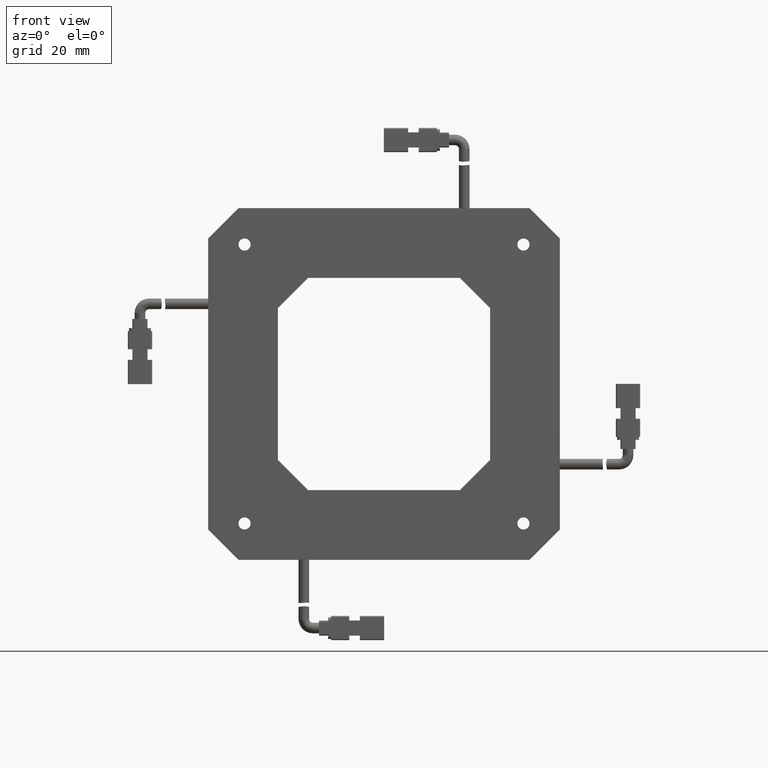
[diagram: clean part render]
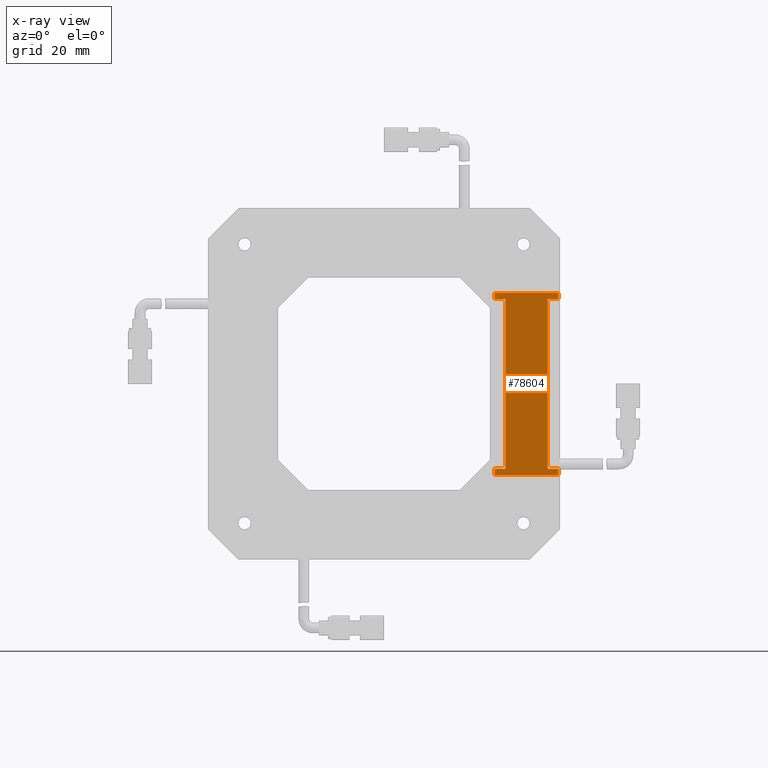
[diagram: x-ray — body ghosted, one internal face saturated and labeled with its STEP entity id]
A machine part, front view, then the same camera in x-ray: the body is ghosted and one INTERNAL B-rep face — a face not visible from any outside direction — is saturated and labeled: STEP entity #78604.
In plain terms, the highlighted planar face has unit normal (-0, -1, 0).
Its self-contained STEP definition (entity closure, byte-faithful):
#987 = ORIENTED_EDGE ( 'NONE', *, *, #86958, .F. ) ;
#1543 = CARTESIAN_POINT ( 'NONE',  ( 40.00000000000074600, 9.899999999999968400, 29.99999999999987600 ) ) ;
#3811 = CARTESIAN_POINT ( 'NONE',  ( 36.50000000000073900, 9.899999999999968400, 29.99999999999987600 ) ) ;
#6073 = CARTESIAN_POINT ( 'NONE',  ( 40.00000000000074600, 9.899999999999968400, -28.00000000000012100 ) ) ;
#6487 = VECTOR ( 'NONE', #44363, 1000.000000000000000 ) ;
#9961 = VERTEX_POINT ( 'NONE', #46045 ) ;
#10122 = CARTESIAN_POINT ( 'NONE',  ( 57.50000000000074600, 9.899999999999966600, 27.99999999999987200 ) ) ;
#10411 = PLANE ( 'NONE',  #84069 ) ;
#10547 = CARTESIAN_POINT ( 'NONE',  ( 57.50000000000074600, 9.899999999999966600, 29.99999999999987600 ) ) ;
#10558 = VECTOR ( 'NONE', #45635, 1000.000000000000000 ) ;
#12713 = LINE ( 'NONE', #86140, #10558 ) ;
#13002 = EDGE_LOOP ( 'NONE', ( #84539, #45401, #59270, #71306, #987, #83959, #25357, #69410, #62525, #13883, #86028, #40588 ) ) ;
#13883 = ORIENTED_EDGE ( 'NONE', *, *, #16760, .F. ) ;
#14167 = EDGE_CURVE ( 'NONE', #70155, #74489, #43806, .T. ) ;
#14190 = CARTESIAN_POINT ( 'NONE',  ( 57.50000000000074600, 9.899999999999966600, 29.99999999999987600 ) ) ;
#15433 = CARTESIAN_POINT ( 'NONE',  ( 57.50000000000074600, 9.899999999999966600, 27.99999999999987200 ) ) ;
#16760 = EDGE_CURVE ( 'NONE', #73609, #54946, #32369, .T. ) ;
#16987 = DIRECTION ( 'NONE',  ( 1.000000000000000000, -1.239088197126290300E-016, 0.0000000000000000000 ) ) ;
#18039 = DIRECTION ( 'NONE',  ( 1.000000000000000000, -1.239088197126290300E-016, 0.0000000000000000000 ) ) ;
#18042 = EDGE_CURVE ( 'NONE', #31218, #58788, #72360, .T. ) ;
#19085 = LINE ( 'NONE', #15433, #53036 ) ;
#22310 = VECTOR ( 'NONE', #72954, 1000.000000000000000 ) ;
#23420 = EDGE_CURVE ( 'NONE', #71334, #70155, #44704, .T. ) ;
#24899 = CARTESIAN_POINT ( 'NONE',  ( 57.50000000000074600, 9.899999999999966600, -30.00000000000012400 ) ) ;
#25357 = ORIENTED_EDGE ( 'NONE', *, *, #49172, .F. ) ;
#26163 = VERTEX_POINT ( 'NONE', #76330 ) ;
#27486 = VERTEX_POINT ( 'NONE', #79325 ) ;
#27536 = CARTESIAN_POINT ( 'NONE',  ( 40.00000000000074600, 9.899999999999968400, 27.99999999999987200 ) ) ;
#31218 = VERTEX_POINT ( 'NONE', #27536 ) ;
#31251 = LINE ( 'NONE', #34081, #47169 ) ;
#31877 = EDGE_CURVE ( 'NONE', #54946, #73276, #73804, .T. ) ;
#32369 = LINE ( 'NONE', #87056, #68453 ) ;
#34081 = CARTESIAN_POINT ( 'NONE',  ( 57.50000000000074600, 9.899999999999966600, -28.00000000000012100 ) ) ;
#35805 = CARTESIAN_POINT ( 'NONE',  ( 36.50000000000073900, 9.899999999999968400, -28.00000000000012100 ) ) ;
#36184 = DIRECTION ( 'NONE',  ( -0.0000000000000000000, -0.0000000000000000000, -1.000000000000000000 ) ) ;
#37697 = CARTESIAN_POINT ( 'NONE',  ( 57.50000000000074600, 9.899999999999966600, 29.99999999999987600 ) ) ;
#37731 = VECTOR ( 'NONE', #18039, 1000.000000000000000 ) ;
#40274 = DIRECTION ( 'NONE',  ( -1.000000000000000000, 1.239088197126290300E-016, -0.0000000000000000000 ) ) ;
#40588 = ORIENTED_EDGE ( 'NONE', *, *, #18042, .F. ) ;
#41172 = DIRECTION ( 'NONE',  ( -1.000000000000000000, 1.239088197126290300E-016, -0.0000000000000000000 ) ) ;
#43806 = LINE ( 'NONE', #57950, #77727 ) ;
#44363 = DIRECTION ( 'NONE',  ( 0.0000000000000000000, 0.0000000000000000000, 1.000000000000000000 ) ) ;
#44416 = CARTESIAN_POINT ( 'NONE',  ( 57.50000000000074600, 9.899999999999966600, -28.00000000000012100 ) ) ;
#44529 = DIRECTION ( 'NONE',  ( 1.000000000000000000, -1.239088197126290300E-016, 0.0000000000000000000 ) ) ;
#44704 = LINE ( 'NONE', #10547, #6487 ) ;
#45401 = ORIENTED_EDGE ( 'NONE', *, *, #75919, .F. ) ;
#45635 = DIRECTION ( 'NONE',  ( 0.0000000000000000000, 0.0000000000000000000, 1.000000000000000000 ) ) ;
#46045 = CARTESIAN_POINT ( 'NONE',  ( 54.00000000000073900, 9.899999999999966600, 27.99999999999987200 ) ) ;
#46173 = CARTESIAN_POINT ( 'NONE',  ( 36.50000000000073900, 9.899999999999968400, -30.00000000000012400 ) ) ;
#46544 = DIRECTION ( 'NONE',  ( -0.0000000000000000000, -0.0000000000000000000, -1.000000000000000000 ) ) ;
#47169 = VECTOR ( 'NONE', #41172, 1000.000000000000000 ) ;
#49033 = DIRECTION ( 'NONE',  ( -0.0000000000000000000, -0.0000000000000000000, -1.000000000000000000 ) ) ;
#49172 = EDGE_CURVE ( 'NONE', #83269, #27486, #31251, .T. ) ;
#50153 = VECTOR ( 'NONE', #49033, 1000.000000000000000 ) ;
#53036 = VECTOR ( 'NONE', #63128, 1000.000000000000000 ) ;
#53937 = CARTESIAN_POINT ( 'NONE',  ( 57.50000000000074600, 9.899999999999966600, -28.00000000000012100 ) ) ;
#54946 = VERTEX_POINT ( 'NONE', #46173 ) ;
#55904 = EDGE_CURVE ( 'NONE', #27486, #9961, #58415, .T. ) ;
#57950 = CARTESIAN_POINT ( 'NONE',  ( 57.50000000000074600, 9.899999999999966600, 29.99999999999987600 ) ) ;
#58318 = EDGE_CURVE ( 'NONE', #58788, #73609, #81652, .T. ) ;
#58415 = LINE ( 'NONE', #66178, #22310 ) ;
#58788 = VERTEX_POINT ( 'NONE', #6073 ) ;
#59270 = ORIENTED_EDGE ( 'NONE', *, *, #14167, .F. ) ;
#62525 = ORIENTED_EDGE ( 'NONE', *, *, #31877, .F. ) ;
#63128 = DIRECTION ( 'NONE',  ( 1.000000000000000000, -1.239088197126290300E-016, 0.0000000000000000000 ) ) ;
#63663 = VECTOR ( 'NONE', #40274, 1000.000000000000000 ) ;
#64748 = DIRECTION ( 'NONE',  ( -1.000000000000000000, 1.239088197126290300E-016, -0.0000000000000000000 ) ) ;
#64803 = EDGE_CURVE ( 'NONE', #26163, #31218, #71027, .T. ) ;
#66178 = CARTESIAN_POINT ( 'NONE',  ( 54.00000000000073900, 9.899999999999966600, 29.99999999999987600 ) ) ;
#66938 = VECTOR ( 'NONE', #36184, 1000.000000000000000 ) ;
#68453 = VECTOR ( 'NONE', #46544, 1000.000000000000000 ) ;
#69410 = ORIENTED_EDGE ( 'NONE', *, *, #76127, .F. ) ;
#70013 = CARTESIAN_POINT ( 'NONE',  ( 36.50000000000073900, 9.899999999999968400, 29.99999999999987600 ) ) ;
#70155 = VERTEX_POINT ( 'NONE', #14190 ) ;
#71027 = LINE ( 'NONE', #10122, #73141 ) ;
#71306 = ORIENTED_EDGE ( 'NONE', *, *, #23420, .F. ) ;
#71334 = VERTEX_POINT ( 'NONE', #81536 ) ;
#72254 = CARTESIAN_POINT ( 'NONE',  ( 57.50000000000074600, 9.899999999999966600, -30.00000000000012400 ) ) ;
#72360 = LINE ( 'NONE', #1543, #50153 ) ;
#72954 = DIRECTION ( 'NONE',  ( 0.0000000000000000000, 0.0000000000000000000, 1.000000000000000000 ) ) ;
#73141 = VECTOR ( 'NONE', #16987, 1000.000000000000000 ) ;
#73276 = VERTEX_POINT ( 'NONE', #24899 ) ;
#73609 = VERTEX_POINT ( 'NONE', #35805 ) ;
#73804 = LINE ( 'NONE', #72254, #37731 ) ;
#74489 = VERTEX_POINT ( 'NONE', #3811 ) ;
#74611 = FACE_OUTER_BOUND ( 'NONE', #13002, .T. ) ;
#75919 = EDGE_CURVE ( 'NONE', #74489, #26163, #84876, .T. ) ;
#76127 = EDGE_CURVE ( 'NONE', #73276, #83269, #12713, .T. ) ;
#76330 = CARTESIAN_POINT ( 'NONE',  ( 36.50000000000073900, 9.899999999999968400, 27.99999999999987200 ) ) ;
#77727 = VECTOR ( 'NONE', #64748, 1000.000000000000000 ) ;
#78604 = ADVANCED_FACE ( 'NONE', ( #74611 ), #10411, .F. ) ;
#79325 = CARTESIAN_POINT ( 'NONE',  ( 54.00000000000073900, 9.899999999999966600, -28.00000000000012100 ) ) ;
#81536 = CARTESIAN_POINT ( 'NONE',  ( 57.50000000000074600, 9.899999999999966600, 27.99999999999987200 ) ) ;
#81652 = LINE ( 'NONE', #53937, #63663 ) ;
#83269 = VERTEX_POINT ( 'NONE', #44416 ) ;
#83959 = ORIENTED_EDGE ( 'NONE', *, *, #55904, .F. ) ;
#84069 = AXIS2_PLACEMENT_3D ( 'NONE', #37697, #85072, #44529 ) ;
#84539 = ORIENTED_EDGE ( 'NONE', *, *, #64803, .F. ) ;
#84876 = LINE ( 'NONE', #70013, #66938 ) ;
#85072 = DIRECTION ( 'NONE',  ( -1.239088197126290300E-016, -1.000000000000000000, 0.0000000000000000000 ) ) ;
#86028 = ORIENTED_EDGE ( 'NONE', *, *, #58318, .F. ) ;
#86140 = CARTESIAN_POINT ( 'NONE',  ( 57.50000000000074600, 9.899999999999966600, 29.99999999999987600 ) ) ;
#86958 = EDGE_CURVE ( 'NONE', #9961, #71334, #19085, .T. ) ;
#87056 = CARTESIAN_POINT ( 'NONE',  ( 36.50000000000073900, 9.899999999999968400, 29.99999999999987600 ) ) ;